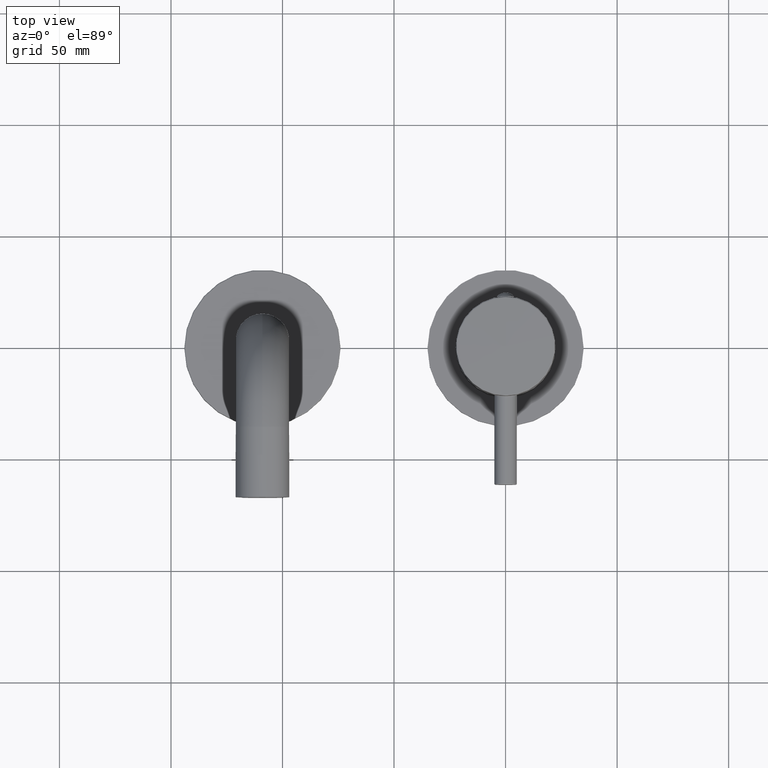
[diagram: clean part render]
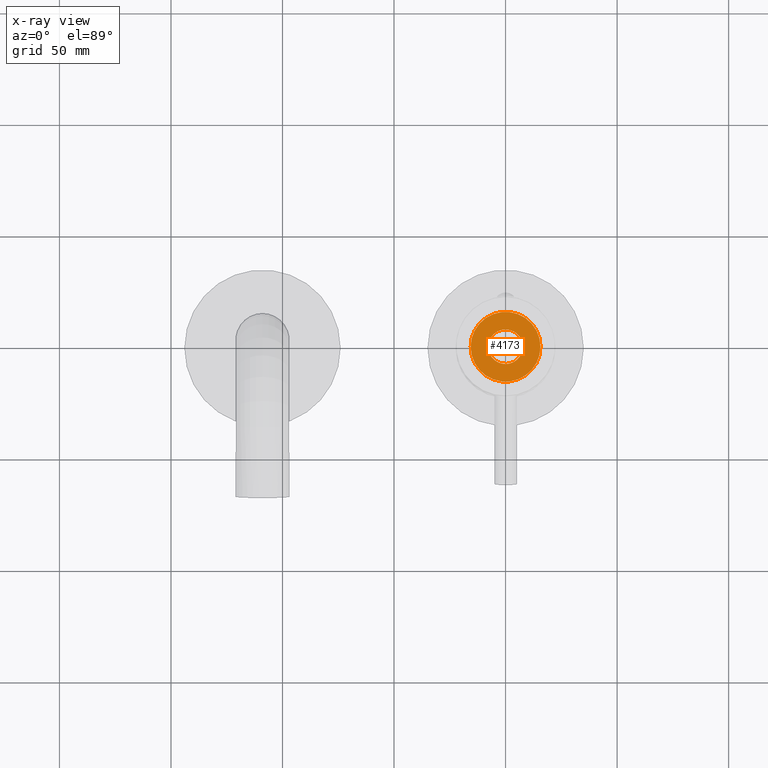
[diagram: x-ray — body ghosted, one internal face saturated and labeled with its STEP entity id]
A machine part, top view, then the same camera in x-ray: the body is ghosted and one INTERNAL B-rep face — a face not visible from any outside direction — is saturated and labeled: STEP entity #4173.
In plain terms, the highlighted planar face has unit normal (0, 0, -1).
Its self-contained STEP definition (entity closure, byte-faithful):
#900=CARTESIAN_POINT('',(1.882807632083E-13,1.324116875952E-14,7.95E1));
#901=DIRECTION('',(0.E0,0.E0,-1.E0));
#902=DIRECTION('',(2.451203214842E-10,-1.E0,0.E0));
#903=AXIS2_PLACEMENT_3D('',#900,#901,#902);
#910=CARTESIAN_POINT('',(0.E0,0.E0,7.95E1));
#911=DIRECTION('',(0.E0,0.E0,1.E0));
#912=DIRECTION('',(-1.E0,0.E0,0.E0));
#913=AXIS2_PLACEMENT_3D('',#910,#911,#912);
#915=CARTESIAN_POINT('',(0.E0,0.E0,7.95E1));
#916=DIRECTION('',(0.E0,0.E0,-1.E0));
#917=DIRECTION('',(-1.E0,0.E0,0.E0));
#918=AXIS2_PLACEMENT_3D('',#915,#916,#917);
#1014=CARTESIAN_POINT('',(1.882807632083E-13,1.324116875952E-14,7.95E1));
#1015=DIRECTION('',(0.E0,0.E0,-1.E0));
#1016=DIRECTION('',(-2.451224851789E-10,1.E0,0.E0));
#1017=AXIS2_PLACEMENT_3D('',#1014,#1015,#1016);
#2883=CARTESIAN_POINT('',(-1.565E1,0.E0,7.95E1));
#2884=CARTESIAN_POINT('',(1.565E1,0.E0,7.95E1));
#2885=VERTEX_POINT('',#2883);
#2886=VERTEX_POINT('',#2884);
#3228=CARTESIAN_POINT('',(1.901599743443E-9,-7.757053561153E0,7.95E1));
#3229=CARTESIAN_POINT('',(-1.901241356001E-9,7.757053561153E0,7.95E1));
#3230=VERTEX_POINT('',#3228);
#3231=VERTEX_POINT('',#3229);
#4157=CARTESIAN_POINT('',(0.E0,0.E0,7.95E1));
#4158=DIRECTION('',(0.E0,0.E0,-1.E0));
#4159=DIRECTION('',(1.E0,0.E0,0.E0));
#4160=AXIS2_PLACEMENT_3D('',#4157,#4158,#4159);
#4161=PLANE('',#4160);
#4163=ORIENTED_EDGE('',*,*,#4162,.F.);
#4165=ORIENTED_EDGE('',*,*,#4164,.T.);
#4166=EDGE_LOOP('',(#4163,#4165));
#4167=FACE_OUTER_BOUND('',#4166,.F.);
#4168=ORIENTED_EDGE('',*,*,#4140,.F.);
#4170=ORIENTED_EDGE('',*,*,#4169,.F.);
#4171=EDGE_LOOP('',(#4168,#4170));
#4172=FACE_BOUND('',#4171,.F.);
#4173=ADVANCED_FACE('',(#4167,#4172),#4161,.F.);
#904=CIRCLE('',#903,7.757053561153E0);
#914=CIRCLE('',#913,1.565E1);
#919=CIRCLE('',#918,1.565E1);
#1018=CIRCLE('',#1017,7.757053561153E0);
#4140=EDGE_CURVE('',#3230,#3231,#904,.T.);
#4162=EDGE_CURVE('',#2885,#2886,#914,.T.);
#4164=EDGE_CURVE('',#2885,#2886,#919,.T.);
#4169=EDGE_CURVE('',#3231,#3230,#1018,.T.);